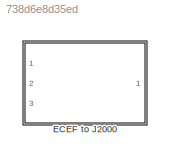
MODEL slx_738d6e8d35ed
KIND library
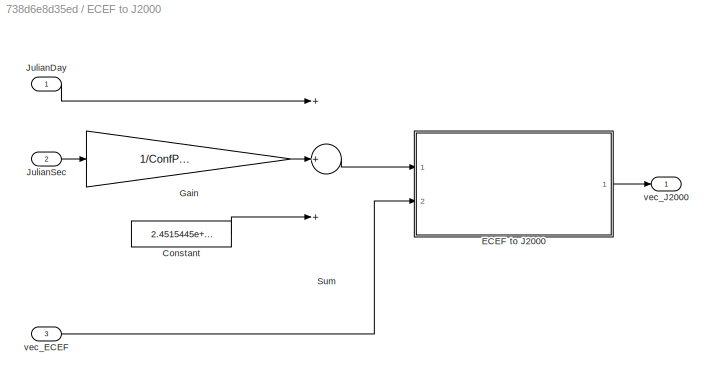
BLOCK [SubSystem] ECEF to J2000
  Ports = [3, 1]
  RequestExecContextInheritance = off
BLOCK [Constant] ECEF to J2000/Constant
  Value = 2.4515445e+06
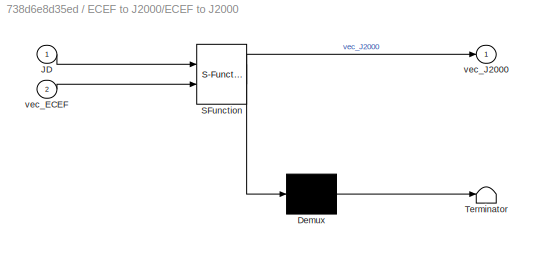
BLOCK [SubSystem] ECEF to J2000/ECEF to J2000
  ErrorFcn = Stateflow.Translate.translate
  PermitHierarchicalResolution = ExplicitOnly
  Ports = [2, 1]
  RequestExecContextInheritance = off
  SFBlockType = MATLAB Function
  TreatAsAtomicUnit = on
BLOCK [Demux] ECEF to J2000/ECEF to J2000/ Demux 
  Outputs = 1
  Ports = [1, 1]
BLOCK [S-Function] ECEF to J2000/ECEF to J2000/ SFunction 
  EnableBusSupport = off
  FunctionName = sf_sfun
  PortCounts = [2 2]
  Ports = [2, 2]
  Tag = Stateflow S-Function ECEFtoJ2000 2
BLOCK [Terminator] ECEF to J2000/ECEF to J2000/ Terminator 
BLOCK [Inport] ECEF to J2000/ECEF to J2000/JD
  IconDisplay = Port number
BLOCK [Inport] ECEF to J2000/ECEF to J2000/vec_ECEF
  IconDisplay = Port number
  Port = 2
BLOCK [Outport] ECEF to J2000/ECEF to J2000/vec_J2000
  IconDisplay = Port number
BLOCK [Gain] ECEF to J2000/Gain
  Gain = 1/ConfParam.confConst.SolarDay
  OutDataTypeStr = Inherit: Inherit via internal rule
  ParamDataTypeStr = Inherit: Inherit via internal rule
  SaturateOnIntegerOverflow = off
BLOCK [Inport] ECEF to J2000/JulianDay
  IconDisplay = Port number
BLOCK [Inport] ECEF to J2000/JulianSec
  IconDisplay = Port number
  Port = 2
BLOCK [Sum] ECEF to J2000/Sum
  InputSameDT = off
  Inputs = +++
  OutDataTypeStr = Inherit: Inherit via internal rule
  Ports = [3, 1]
  SaturateOnIntegerOverflow = off
BLOCK [Inport] ECEF to J2000/vec_ECEF
  IconDisplay = Port number
  Port = 3
BLOCK [Outport] ECEF to J2000/vec_J2000
  IconDisplay = Port number
LINE ECEF to J2000/Constant:1 -> ECEF to J2000/Sum:3
LINE ECEF to J2000/ECEF to J2000:1 -> ECEF to J2000/vec_J2000:1
LINE ECEF to J2000/Gain:1 -> ECEF to J2000/Sum:2
LINE ECEF to J2000/JulianDay:1 -> ECEF to J2000/Sum:1
LINE ECEF to J2000/JulianSec:1 -> ECEF to J2000/Gain:1
LINE ECEF to J2000/Sum:1 -> ECEF to J2000/ECEF to J2000:1
LINE ECEF to J2000/vec_ECEF:1 -> ECEF to J2000/ECEF to J2000:2
CHART ECEF to J2000/ECEF to J2000 states=1 transitions=1
  STATE_LABEL 'eML_blk_kernel()'
  STATE_LABEL 'SCRIPT:\nfunction vec_J2000 = ECEFtoJ2000(JD, vec_ECEF)\n\n%Calculate the Greenwich Apparent Sideral Time (THETA)\n%See http://www.cdeagle.com/omnum/pdf/csystems.pdf equation 27\nTHETA = JD2GAST(JD);\n\n%Assemble the transformation matricies to go from ECEF to ECI\n%See http://www.cdeagle.com/omnum/pdf/csystems.pdf equation 26\nvec_J2000 = squeeze(MultiDimMatrixMultiply(MultiDimMatrixTranspose(T3D(THETA)),...<+91ch>'
